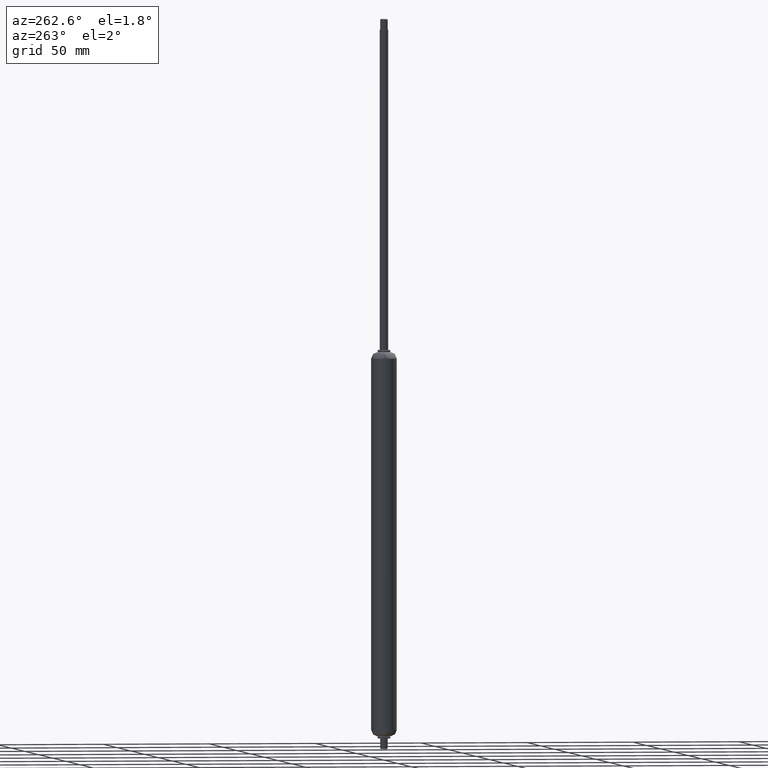
[diagram: clean part render]
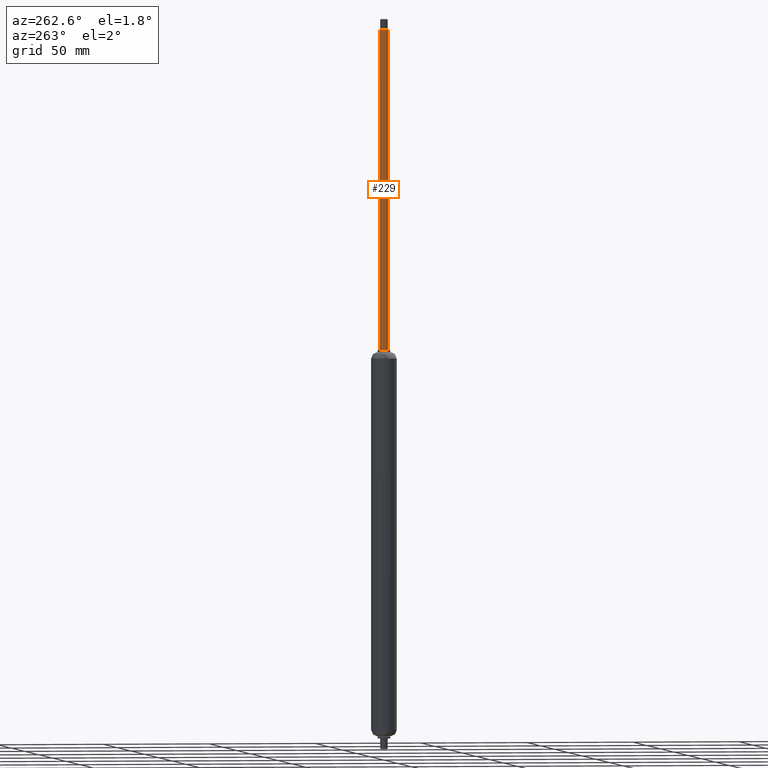
[diagram: same view with one face highlighted and labeled with its STEP entity id]
A machine part, auxiliary view. The second image highlights one B-rep face of the part: STEP entity #229.
In plain terms, the highlighted face is a freeform B-spline surface patch.
Its self-contained STEP definition (entity closure, byte-faithful):
#66=CARTESIAN_POINT('',(-0.236068473670214,1.986019052208799,0.999999999999994));
#67=VERTEX_POINT('',#66);
#85=CARTESIAN_POINT('',(-0.236068473670219,1.986019052208799,151.0));
#86=VERTEX_POINT('',#85);
#87=CARTESIAN_POINT('',(-0.236068473670219,1.986019052208799,151.0));
#88=CARTESIAN_POINT('',(-0.236068473670214,1.986019052208799,0.999999999999994));
#89=QUASI_UNIFORM_CURVE('',1,(#87,#88),.UNSPECIFIED.,.F.,.U.);
#90=EDGE_CURVE('',#86,#67,#89,.T.);
#109=CARTESIAN_POINT('',(0.122097083703871,-1.996269596559663,151.0));
#110=VERTEX_POINT('',#109);
#124=CARTESIAN_POINT('',(0.122097083703865,-1.996269596559664,0.999999999999993));
#125=VERTEX_POINT('',#124);
#126=CARTESIAN_POINT('',(0.122097083703871,-1.996269596559663,151.0));
#127=CARTESIAN_POINT('',(0.122097083703865,-1.996269596559664,0.999999999999993));
#128=QUASI_UNIFORM_CURVE('',1,(#126,#127),.UNSPECIFIED.,.F.,.U.);
#129=EDGE_CURVE('',#110,#125,#128,.T.);
#147=CARTESIAN_POINT('',(0.122097079069881,-1.996269596843090,154.750000000000000));
#148=CARTESIAN_POINT('',(-1.874172517773210,-2.118366675912764,154.750000000000090));
#149=CARTESIAN_POINT('',(-1.996269596842884,-0.122097079069675,154.750000000000000));
#150=CARTESIAN_POINT('',(-2.111572393464168,1.763086981678433,154.750000000000110));
#151=CARTESIAN_POINT('',(-0.236068469313235,1.986019052726692,154.750000000000030));
#152=CARTESIAN_POINT('',(0.122097079069881,-1.996269596843090,-2.843750000000000));
#153=CARTESIAN_POINT('',(-1.874172517773210,-2.118366675912764,-2.843750000000001));
#154=CARTESIAN_POINT('',(-1.996269596842884,-0.122097079069675,-2.843750000000000));
#155=CARTESIAN_POINT('',(-2.111572393464168,1.763086981678433,-2.843750000000000));
#156=CARTESIAN_POINT('',(-0.236068469313235,1.986019052726692,-2.843750000000000));
#164=(BOUNDED_SURFACE()B_SPLINE_SURFACE(2,1,((#147,#152),(#148,#153),(#149,#154),(#150,#155),(#151,#156)),.UNSPECIFIED.,.F.,.F.,.U.)B_SPLINE_SURFACE_WITH_KNOTS((3,2,3),(2,2),(0.0,3.313708498983691,6.494868658008034),(0.0,157.593750000000110),.UNSPECIFIED.)GEOMETRIC_REPRESENTATION_ITEM()RATIONAL_B_SPLINE_SURFACE(((1.0,1.0),(0.707106781186548,0.707106781186548),(1.0,1.0),(0.718822509939086,0.718822509939086),(0.977505800795127,0.977505800795127)))REPRESENTATION_ITEM('')SURFACE());
#165=CARTESIAN_POINT('',(-1.999999999999149,0.0,1.0));
#166=VERTEX_POINT('',#165);
#167=CARTESIAN_POINT('',(-1.999999999999149,0.0,1.0));
#168=CARTESIAN_POINT('',(-1.999999999999149,1.776349044053296,1.0));
#169=CARTESIAN_POINT('',(-0.236068473670214,1.986019052208799,0.999999999999994));
#177=(BOUNDED_CURVE()B_SPLINE_CURVE(2,(#167,#168,#169),.UNSPECIFIED.,.F.,.U.)B_SPLINE_CURVE_WITH_KNOTS((3,3),(0.0,0.229562472774117),.UNSPECIFIED.)CURVE()GEOMETRIC_REPRESENTATION_ITEM()RATIONAL_B_SPLINE_CURVE((1.0,0.731050833721653,0.956026752734462))REPRESENTATION_ITEM(''));
#178=EDGE_CURVE('',#166,#67,#177,.T.);
#179=ORIENTED_EDGE('',*,*,#178,.F.);
#180=CARTESIAN_POINT('',(0.122097083703865,-1.996269596559664,0.999999999999993));
#181=CARTESIAN_POINT('',(0.061105531244342,-1.999999999999356,1.0));
#182=CARTESIAN_POINT('',(2.060574E-013,-1.999999999999355,1.0));
#183=CARTESIAN_POINT('',(-1.999999999999149,-1.999999999999355,1.0));
#184=CARTESIAN_POINT('',(-1.999999999999149,0.0,1.0));
#192=(BOUNDED_CURVE()B_SPLINE_CURVE(2,(#180,#181,#182,#183,#184),.UNSPECIFIED.,.F.,.U.)B_SPLINE_CURVE_WITH_KNOTS((3,2,3),(0.739332961440895,0.750000000000000,1.0),.UNSPECIFIED.)CURVE()GEOMETRIC_REPRESENTATION_ITEM()RATIONAL_B_SPLINE_CURVE((0.976072039956349,0.987502786964866,1.0,0.707106781186548,1.0))REPRESENTATION_ITEM(''));
#193=EDGE_CURVE('',#125,#166,#192,.T.);
#194=ORIENTED_EDGE('',*,*,#193,.F.);
#195=ORIENTED_EDGE('',*,*,#129,.F.);
#196=CARTESIAN_POINT('',(-1.999999999999149,0.0,151.0));
#197=VERTEX_POINT('',#196);
#198=CARTESIAN_POINT('',(0.122097083703871,-1.996269596559663,151.000000000000030));
#199=CARTESIAN_POINT('',(0.061105531244348,-1.999999999999355,151.0));
#200=CARTESIAN_POINT('',(2.060574E-013,-1.999999999999355,151.0));
#201=CARTESIAN_POINT('',(-1.999999999999149,-1.999999999999355,151.000000000000030));
#202=CARTESIAN_POINT('',(-1.999999999999149,0.0,151.0));
#210=(BOUNDED_CURVE()B_SPLINE_CURVE(2,(#198,#199,#200,#201,#202),.UNSPECIFIED.,.F.,.U.)B_SPLINE_CURVE_WITH_KNOTS((3,2,3),(0.739332961440894,0.750000000000000,1.0),.UNSPECIFIED.)CURVE()GEOMETRIC_REPRESENTATION_ITEM()RATIONAL_B_SPLINE_CURVE((0.976072039956347,0.987502786964865,1.0,0.707106781186548,1.0))REPRESENTATION_ITEM(''));
#211=EDGE_CURVE('',#110,#197,#210,.T.);
#212=ORIENTED_EDGE('',*,*,#211,.T.);
#213=CARTESIAN_POINT('',(-1.999999999999149,0.0,151.0));
#214=CARTESIAN_POINT('',(-1.999999999999150,1.776349044053287,151.0));
#215=CARTESIAN_POINT('',(-0.236068473670219,1.986019052208799,150.999999999999940));
#223=(BOUNDED_CURVE()B_SPLINE_CURVE(2,(#213,#214,#215),.UNSPECIFIED.,.F.,.U.)B_SPLINE_CURVE_WITH_KNOTS((3,3),(0.0,0.229562472774116),.UNSPECIFIED.)CURVE()GEOMETRIC_REPRESENTATION_ITEM()RATIONAL_B_SPLINE_CURVE((1.0,0.731050833721654,0.956026752734460))REPRESENTATION_ITEM(''));
#224=EDGE_CURVE('',#197,#86,#223,.T.);
#225=ORIENTED_EDGE('',*,*,#224,.T.);
#226=ORIENTED_EDGE('',*,*,#90,.T.);
#227=EDGE_LOOP('',(#179,#194,#195,#212,#225,#226));
#228=FACE_OUTER_BOUND('',#227,.T.);
#229=ADVANCED_FACE('',(#228),#164,.T.);